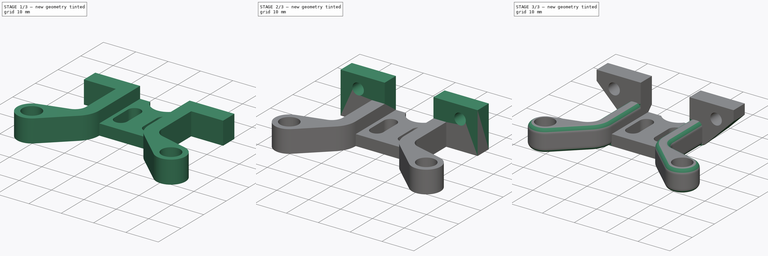
[diagram: build sequence overview — one tinted view per stage of 3, left to right]
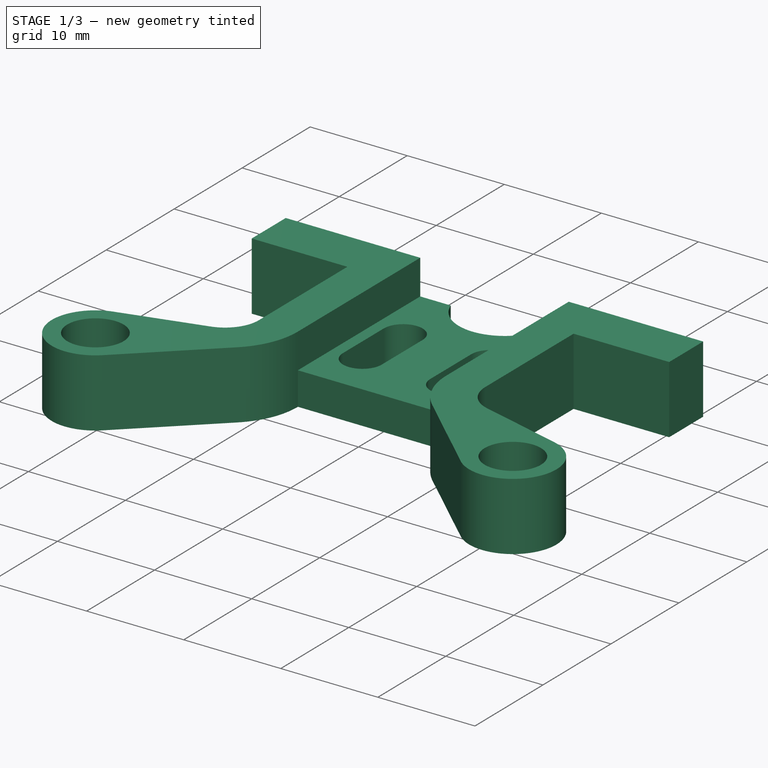
[diagram: stage 1 of 3 — iso view after this stage's code; geometry added in this stage tinted green]
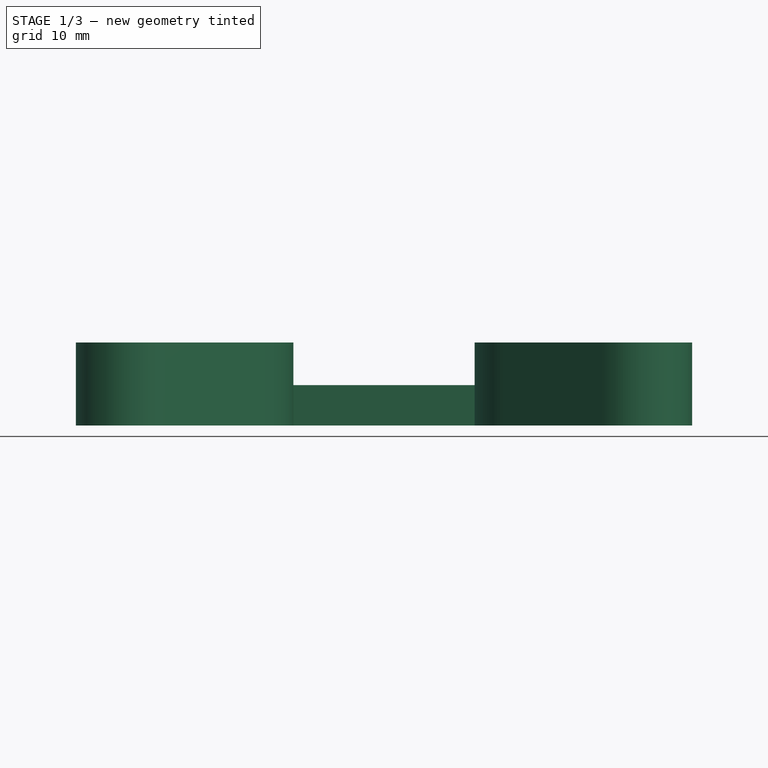
[diagram: stage 1 of 3 — front view after this stage's code; geometry added in this stage tinted green]
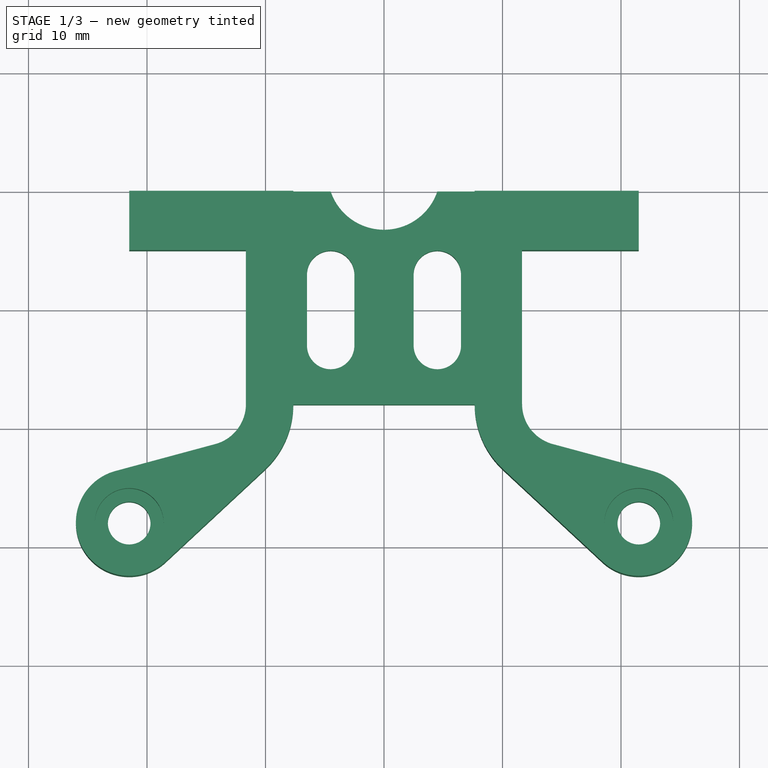
[diagram: stage 1 of 3 — top view after this stage's code; geometry added in this stage tinted green]
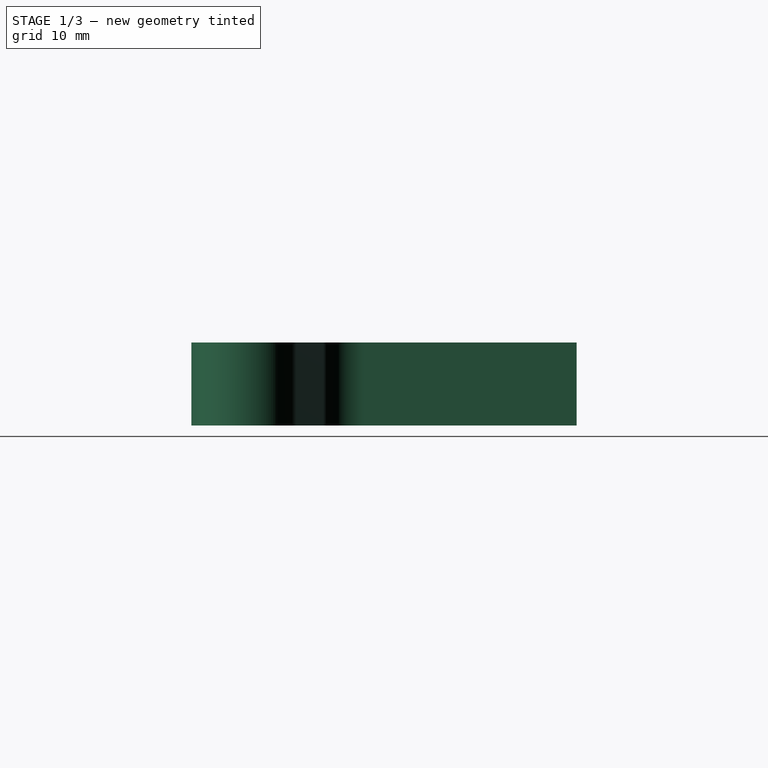
[diagram: stage 1 of 3 — right view after this stage's code; geometry added in this stage tinted green]
FCSTD DOCUMENT  (FreeCAD 1.0R39319 (Git))
Label: Dragon_GX-H15A
License: All rights reserved
LicenseURL: https://en.wikipedia.org/wiki/All_rights_reserved
objects: Sketcher::SketchObject×7, PartDesign::Pocket×5, PartDesign::Pad×2, App::VarSet×1, PartDesign::Fillet×1, PartDesign::Body×1
note: 39 computed .brp shape members not serialized (recipe doc carries the construction recipe); baked Part::Feature solids carry a one-line shape summary decoded from their .brp

FEATURE [App::VarSet] VarSet
  BaseScrewDistance = 42
  BaseScrewFromTop = 28
  ChannelGap = 1.6
  M25HeadDiameter = 4.6
  M25HeadHeight = 2.5
  M25HeatInsert5x4_Diameter = 2.9
  M25HeatInsert5x4_Height = 4.2
  M25NutDiameterMax = 5.8
  M25NutDiameterMin = 5.2
  M25NutHeigth = 2.1
  M25PassThroughDiameter = 2.8
  M25SelfTappingDiameter = 2.4
  M3HeadDiameter = 5.8
  M3HeadHeight = 3
  M3HeatInsert5x4_Diameter = 4.9
  M3HeatInsert5x4_Height = 4.2
  M3PassThroughDiameter = 3.6
  M3SelfTappingDiameter = 2.9
  PindaCenterOffset = 7
  PindaDiameter = 8.4
  PindaSupportLength = 32
  StructureHeight = 7
  SupportArc = 11
  TopHeight = 13
  TopScrewDistance = 32
  TopScrewFromBase = 9
  TopWidth = 43
FEATURE [Sketcher::SketchObject] Sketch
  ArcFitTolerance = 1e-06
  AttachmentSupport = -> [XY_Plane]
  FullyConstrained = true
  MakeInternals = false
  MapMode = 5
  expr: Constraints[13] = VarSet.BaseScrewFromTop
  expr: Constraints[21] = VarSet.M3PassThroughDiameter
  expr: Constraints[7] = VarSet.TopWidth
  sketch-geometry (41):
    g0: LineSegment StartX=-21.5 StartY=0 StartZ=0 EndX=-21.5 EndY=-5 EndZ=0
    g1: LineSegment StartX=21.5 StartY=-5 StartZ=0 EndX=21.5 EndY=0 EndZ=0
    g2: LineSegment [constr] StartX=21.5 StartY=0 StartZ=0 EndX=-21.5 EndY=0 EndZ=0
    g3: LineSegment [constr] StartX=-7.65 StartY=-5 StartZ=0 EndX=-7.65 EndY=-18 EndZ=0
    g4: LineSegment [constr] StartX=7.65 StartY=-5 StartZ=0 EndX=7.65 EndY=-18 EndZ=0
    g5: Circle CenterX=21.5 CenterY=-28 CenterZ=0 NormalX=0 NormalY=0 NormalZ=1 AngleXU=0 Radius=1.8
    g6: LineSegment [constr] StartX=21.5 StartY=0 StartZ=0 EndX=21.5 EndY=-28 EndZ=0
    g7: LineSegment [constr] StartX=-21.5 StartY=-5 StartZ=0 EndX=-21.5 EndY=-28 EndZ=0
    g8: LineSegment [constr] StartX=21.5 StartY=-28 StartZ=0 EndX=-21.5 EndY=-28 EndZ=0
    g9: Circle CenterX=-21.5 CenterY=-28 CenterZ=0 NormalX=0 NormalY=0 NormalZ=1 AngleXU=0 Radius=1.8
    g10: ArcOfCircle CenterX=15.15 CenterY=-18 CenterZ=0 NormalX=0 NormalY=0 NormalZ=1 AngleXU=0 Radius=7.5 StartAngle=3.14159 EndAngle=3.96339
    g11: LineSegment StartX=10.0432 StartY=-23.4928 StartZ=0 EndX=18.4359 EndY=-31.2957 EndZ=0
    g12: ArcOfCircle CenterX=21.5 CenterY=-28 CenterZ=0 NormalX=0 NormalY=0 NormalZ=1 AngleXU=0 Radius=4.5 StartAngle=3.96339 EndAngle=7.59038
    g13: ArcOfCircle CenterX=-21.5 CenterY=-28 CenterZ=0 NormalX=0 NormalY=0 NormalZ=1 AngleXU=0 Radius=4.5 StartAngle=1.8344 EndAngle=5.46138
    g14: ArcOfCircle CenterX=-15.15 CenterY=-18 CenterZ=0 NormalX=0 NormalY=0 NormalZ=1 AngleXU=0 Radius=7.5 StartAngle=5.46138 EndAngle=6.28319
    g15: LineSegment StartX=-10.0432 StartY=-23.4928 StartZ=0 EndX=-18.4359 EndY=-31.2957 EndZ=0
    g16: LineSegment [constr] StartX=-7.65 StartY=-5 StartZ=0 EndX=-11.65 EndY=-5 EndZ=0
    g17: LineSegment [constr] StartX=7.65 StartY=-5 StartZ=0 EndX=11.65 EndY=-5 EndZ=0
    g18: LineSegment StartX=-21.5 StartY=-5 StartZ=0 EndX=-11.65 EndY=-5 EndZ=0
    g19: LineSegment StartX=11.65 StartY=-5 StartZ=0 EndX=21.5 EndY=-5 EndZ=0
    g20: LineSegment StartX=-11.65 StartY=-5 StartZ=0 EndX=-11.65 EndY=-18 EndZ=0
    g21: LineSegment StartX=11.65 StartY=-5 StartZ=0 EndX=11.65 EndY=-18 EndZ=0
    g22: ArcOfCircle CenterX=-15.15 CenterY=-18 CenterZ=0 NormalX=0 NormalY=0 NormalZ=1 AngleXU=0 Radius=3.5 StartAngle=4.97599 EndAngle=6.28319
    g23: ArcOfCircle CenterX=15.15 CenterY=-18 CenterZ=0 NormalX=0 NormalY=0 NormalZ=1 AngleXU=0 Radius=3.5 StartAngle=3.14159 EndAngle=4.44878
    g24: LineSegment StartX=22.6725 StartY=-23.6554 StartZ=0 EndX=14.238 EndY=-21.3791 EndZ=0
    g25: LineSegment StartX=-22.6725 StartY=-23.6554 StartZ=0 EndX=-14.238 EndY=-21.3791 EndZ=0
    g26: LineSegment StartX=-7.65 StartY=-18 StartZ=0 EndX=7.65 EndY=-18 EndZ=0
    g27: ArcOfCircle CenterX=-4.5 CenterY=-7 CenterZ=0 NormalX=0 NormalY=0 NormalZ=1 AngleXU=0 Radius=2 StartAngle=0 EndAngle=3.14159
    g28: ArcOfCircle CenterX=4.5 CenterY=-7 CenterZ=0 NormalX=0 NormalY=0 NormalZ=1 AngleXU=0 Radius=2 StartAngle=0 EndAngle=3.14159
    g29: LineSegment StartX=-6.5 StartY=-7 StartZ=0 EndX=-6.5 EndY=-13 EndZ=0
    g30: LineSegment StartX=-2.5 StartY=-7 StartZ=0 EndX=-2.5 EndY=-13 EndZ=0
    g31: LineSegment StartX=2.5 StartY=-7 StartZ=0 EndX=2.5 EndY=-13 EndZ=0
    g32: LineSegment StartX=6.5 StartY=-7 StartZ=0 EndX=6.5 EndY=-13 EndZ=0
    g33: LineSegment [constr] StartX=4.5 StartY=0 StartZ=0 EndX=4.5 EndY=-5 EndZ=0
    g34: LineSegment [constr] StartX=-4.5 StartY=-7 StartZ=0 EndX=4.5 EndY=-7 EndZ=0
    g35: ArcOfCircle CenterX=-4.5 CenterY=-13 CenterZ=0 NormalX=0 NormalY=0 NormalZ=1 AngleXU=0 Radius=2 StartAngle=3.14159 EndAngle=6.28319
    g36: ArcOfCircle CenterX=4.5 CenterY=-13 CenterZ=0 NormalX=0 NormalY=0 NormalZ=1 AngleXU=0 Radius=2 StartAngle=3.14159 EndAngle=6.28319
    g37: LineSegment [constr] StartX=4.5 StartY=-18 StartZ=0 EndX=4.5 EndY=-15 EndZ=0
    g38: LineSegment StartX=-21.5 StartY=0 StartZ=0 EndX=-4.5 EndY=-2e-16 EndZ=0
    g39: LineSegment StartX=21.5 StartY=0 StartZ=0 EndX=4.5 EndY=0 EndZ=0
    g40: ArcOfCircle CenterX=1e-16 CenterY=1.52069 CenterZ=0 NormalX=0 NormalY=0 NormalZ=1 AngleXU=0 Radius=4.75 StartAngle=3.46748 EndAngle=5.9573
  constraints (106):
    c: Coincident(g1,g2)
    c: Coincident(g2,g0)
    c: Vertical(g0)
    c: Vertical(g1)
    c: PointOnObject(g0,g-1)
    c: Distance(g0) = 5
    c: Symmetric(g0,g1,g-1)
    c: Distance(g2) = 43
    c: Vertical(g3)
    c: Vertical(g4)
    c: Coincident(g6,g1)
    c: Coincident(g5,g6)
    c: Vertical(g6)
    c: Distance(g6) = 28
    c: Coincident(g7,g0)
    c: Vertical(g7)
    c: Coincident(g8,g5)
    c: Horizontal(g8)
    c: Coincident(g8,g7)
    c: Coincident(g9,g7)
    c: Equal(g5,g9)
    c: Diameter(g5) = 3.6
    c: Equal(g3,g4)
    c: Distance(g3) = 13
    c: Tangent(g10,g4) = -1.5708
    c: Diameter(g10) = 15
    c: Tangent(g11,g10) = -1.5708
    c: Coincident(g12,g5)
    c: Diameter(g12) = 9
    c: Tangent(g11,g12) = -1.5708
    c: Coincident(g13,g7)
    c: Equal(g12,g13)
    c: Tangent(g14,g3) = 1.5708
    c: Equal(g14,g10)
    c: Tangent(g15,g14) = 1.5708
    c: Tangent(g15,g13) = 1.5708
    c: Coincident(g16,g3)
    c: Horizontal(g16)
    c: Coincident(g17,g4)
    c: Horizontal(g17)
    c: Distance(g17) = 4
    c: Equal(g17,g16)
    c: Coincident(g18,g0)
    c: Coincident(g18,g16)
    c: Horizontal(g18)
    c: Coincident(g19,g17)
    c: Coincident(g19,g1)
    c: Horizontal(g19)
    c: Equal(g19,g18)
    c: Coincident(g20,g16)
    c: Vertical(g20)
    c: Coincident(g21,g17)
    c: Vertical(g21)
    c: Coincident(g22,g14)
    c: Coincident(g23,g10)
    c: Tangent(g23,g21) = -1.5708
    c: Tangent(g22,g20) = 1.5708
    c: Tangent(g25,g13) = 1.5708
    c: Tangent(g24,g12) = -1.5708
    c: Tangent(g24,g23) = 1.5708
    c: Tangent(g25,g22) = -1.5708
    c: Coincident(g26,g3)
    c: Coincident(g26,g4)
    c: Distance(g26) = 15.3
    c: Horizontal(g26)
    c: Equal(g27,g28)
    c: Vertical(g29)
    c: Vertical(g30)
    c: Vertical(g31)
    c: Vertical(g32)
    c: Equal(g29,g31)
    c: Tangent(g29,g27) = -1.5708
    c: Equal(g30,g31)
    c: Equal(g31,g32)
    c: Tangent(g31,g28) = -1.5708
    c: Tangent(g30,g27) = 1.5708
    c: Tangent(g32,g28) = 1.5708
    c: Diameter(g28) = 4
    c: PointOnObject(g33,g2)
    c: Vertical(g33)
    c: Equal(g33,g0)
    c: PointOnObject(g33,g28)
    c: Perpendicular(g28,g33)
    c: Coincident(g34,g27)
    c: Coincident(g34,g28)
    c: Distance(g34) = 9
    c: Symmetric(g27,g28,g-2)
    c: Coincident(g35,g29)
    c: Coincident(g36,g31)
    c: Equal(g28,g36)
    c: Equal(g36,g35)
    c: Coincident(g35,g30)
    c: Coincident(g36,g32)
    c: PointOnObject(g37,g26)
    c: Vertical(g37)
    c: PointOnObject(g37,g36)
    c: Perpendicular(g36,g37)
    c: Distance(g37) = 3
    c: Coincident(g38,g0)
    c: PointOnObject(g38,g2)
    c: Coincident(g39,g1)
    c: Coincident(g39,g33)
    c: Equal(g39,g38)
    c: Coincident(g40,g38)
    c: Diameter(g40) = 9.5
    c: Coincident(g33,g40)
FEATURE [PartDesign::Pad] Pad  label="Main Structure"
  Direction = (0,0,1)
  Length = 7
  Length2 = 10
  Profile = -> Sketch
  ReferenceAxis = -> Sketch [N_Axis]
  Refine = true
  Suppressed = false
  Type = 0
  expr: Length = VarSet.StructureHeight
FEATURE [Sketcher::SketchObject] Sketch001
  ArcFitTolerance = 1e-06
  AttachmentSupport = -> [Pad]
  ExternalGeometry = -> [Pad]
  FullyConstrained = true
  MakeInternals = false
  MapMode = 5
  Placement = pos=(0,0,7) rot=(0,0,1;0rad)
  sketch-geometry (4):
    g0: LineSegment StartX=-7.65 StartY=-18 StartZ=0 EndX=7.65 EndY=-18 EndZ=0
    g1: LineSegment StartX=7.65 StartY=-18 StartZ=0 EndX=7.65 EndY=0 EndZ=0
    g2: LineSegment StartX=7.65 StartY=0 StartZ=0 EndX=-7.65 EndY=0 EndZ=0
    g3: LineSegment StartX=-7.65 StartY=0 StartZ=0 EndX=-7.65 EndY=-18 EndZ=0
  constraints (10):
    c: Coincident(g0,g1)
    c: Coincident(g1,g2)
    c: Coincident(g2,g3)
    c: Coincident(g3,g0)
    c: Horizontal(g2)
    c: Vertical(g1)
    c: Vertical(g3)
    c: Coincident(g0,g-3)
    c: PointOnObject(g1,g-1)
    c: Coincident(g0,g-3)
FEATURE [PartDesign::Pocket] Pocket  label="Sensor Bay"
  BaseFeature = -> Pad
  Direction = (0,0,-1)
  Length = 3.6
  Length2 = 5
  Profile = -> Sketch001
  ReferenceAxis = -> Sketch001 [N_Axis]
  Refine = true
  Suppressed = false
  Type = 0
FEATURE [Sketcher::SketchObject] Sketch002
  ArcFitTolerance = 1e-06
  AttachmentSupport = -> [Pocket]
  ExternalGeometry = -> [Pocket]
  FullyConstrained = true
  MakeInternals = false
  MapMode = 5
  Placement = pos=(0,0,7) rot=(0,0,1;0rad)
  expr: Constraints[3] = VarSet.M3HeadDiameter
  sketch-geometry (2):
    g0: Circle CenterX=-21.5 CenterY=-28 CenterZ=0 NormalX=0 NormalY=0 NormalZ=1 AngleXU=0 Radius=2.9
    g1: Circle CenterX=21.5 CenterY=-28 CenterZ=0 NormalX=0 NormalY=0 NormalZ=1 AngleXU=0 Radius=2.9
  constraints (4):
    c: Coincident(g0,g-3)
    c: Coincident(g1,g-4)
    c: Equal(g0,g1)
    c: Diameter(g1) = 5.8
FEATURE [PartDesign::Pocket] Pocket001  label="Lower Screws Head"
  BaseFeature = -> Pocket
  Direction = (0,0,-1)
  Length = 3
  Length2 = 5
  Profile = -> Sketch002
  ReferenceAxis = -> Sketch002 [N_Axis]
  Refine = true
  Suppressed = false
  Type = 0
  expr: Length = VarSet.M3HeadHeight
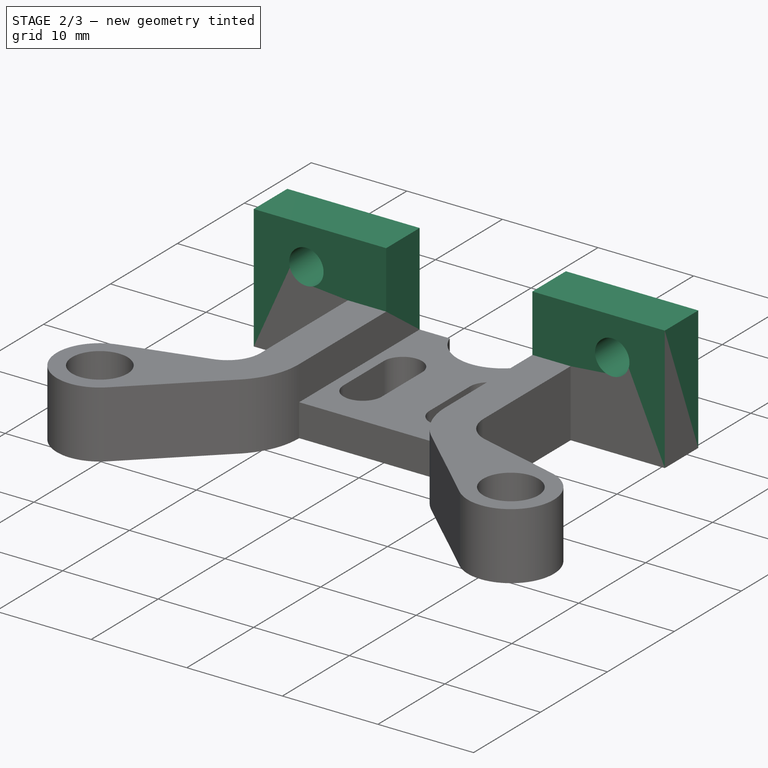
[diagram: stage 2 of 3 — iso view after this stage's code; geometry added in this stage tinted green]
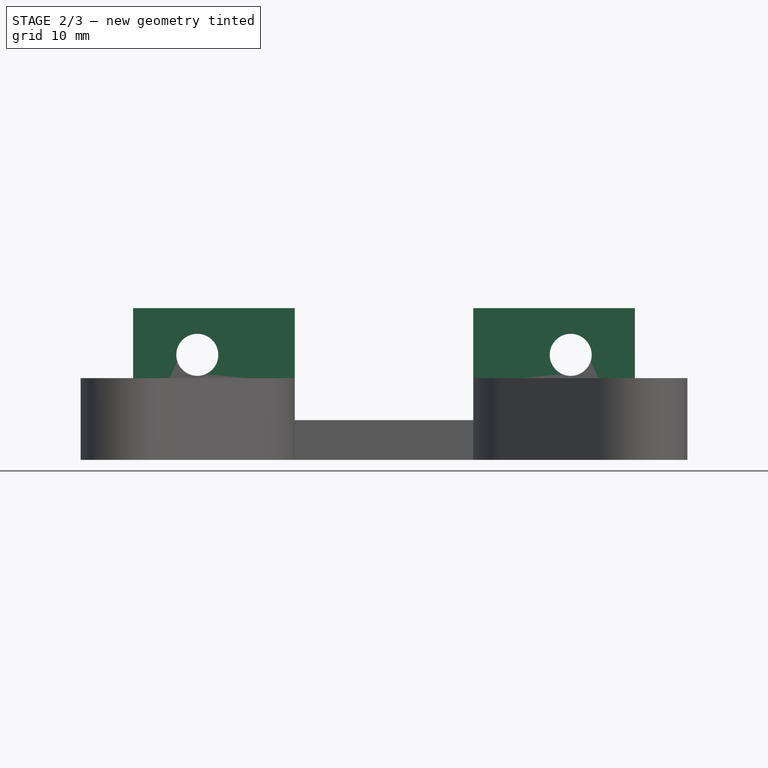
[diagram: stage 2 of 3 — front view after this stage's code; geometry added in this stage tinted green]
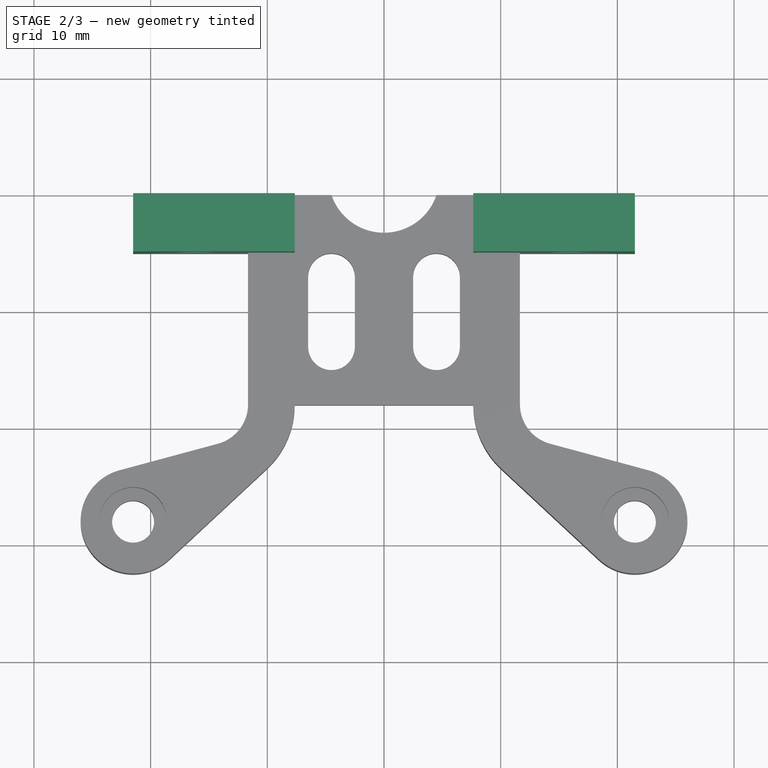
[diagram: stage 2 of 3 — top view after this stage's code; geometry added in this stage tinted green]
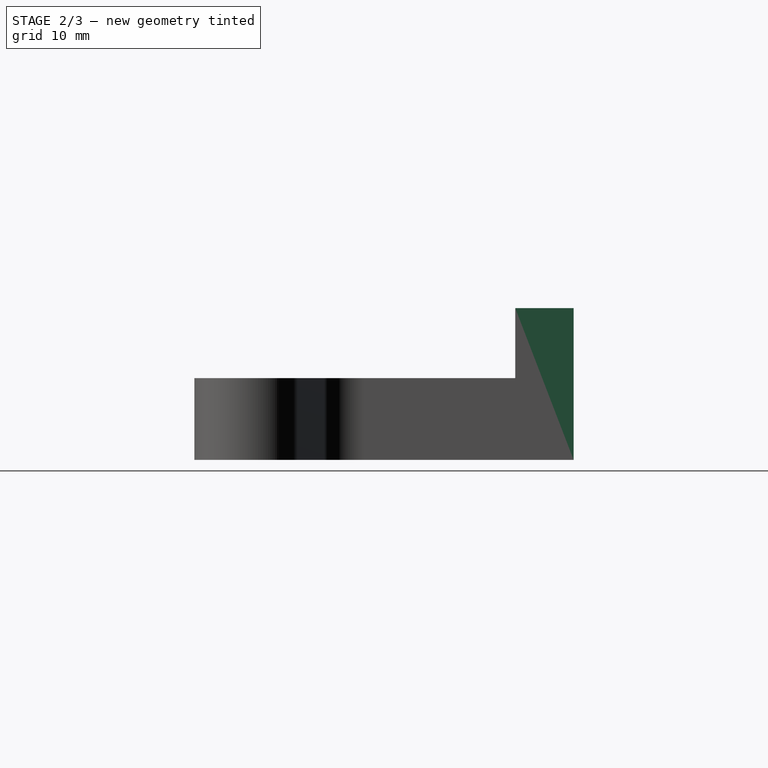
[diagram: stage 2 of 3 — right view after this stage's code; geometry added in this stage tinted green]
FEATURE [Sketcher::SketchObject] Sketch003
  ArcFitTolerance = 1e-06
  AttachmentSupport = -> [Pocket001]
  ExternalGeometry = -> [Pocket001]
  FullyConstrained = true
  MakeInternals = false
  MapMode = 5
  Placement = pos=(0,0,7) rot=(0,0,1;0rad)
  sketch-geometry (8):
    g0: LineSegment StartX=-21.5 StartY=-5 StartZ=0 EndX=-7.65 EndY=-5 EndZ=0
    g1: LineSegment StartX=-7.65 StartY=-5 StartZ=0 EndX=-7.65 EndY=0 EndZ=0
    g2: LineSegment StartX=-7.65 StartY=0 StartZ=0 EndX=-21.5 EndY=0 EndZ=0
    g3: LineSegment StartX=-21.5 StartY=0 StartZ=0 EndX=-21.5 EndY=-5 EndZ=0
    g4: LineSegment StartX=21.5 StartY=-5 StartZ=0 EndX=21.5 EndY=0 EndZ=0
    g5: LineSegment StartX=21.5 StartY=0 StartZ=0 EndX=7.65 EndY=0 EndZ=0
    g6: LineSegment StartX=7.65 StartY=0 StartZ=0 EndX=7.65 EndY=-5 EndZ=0
    g7: LineSegment StartX=7.65 StartY=-5 StartZ=0 EndX=21.5 EndY=-5 EndZ=0
  constraints (20):
    c: Coincident(g0,g1)
    c: Coincident(g1,g2)
    c: Coincident(g2,g3)
    c: Coincident(g3,g0)
    c: Horizontal(g0)
    c: Horizontal(g2)
    c: Vertical(g1)
    c: Vertical(g3)
    c: Coincident(g0,g-3)
    c: Coincident(g1,g-6)
    c: Coincident(g4,g5)
    c: Coincident(g5,g6)
    c: Coincident(g6,g7)
    c: Coincident(g7,g4)
    c: Vertical(g4)
    c: Vertical(g6)
    c: Horizontal(g5)
    c: Horizontal(g7)
    c: Coincident(g4,g-4)
    c: Coincident(g5,g-5)
FEATURE [PartDesign::Pad] Pad001  label="Top Structure"
  BaseFeature = -> Pocket001
  Direction = (0,0,1)
  Length = 6
  Length2 = 10
  Profile = -> Sketch003
  ReferenceAxis = -> Sketch003 [N_Axis]
  Refine = true
  Suppressed = false
  Type = 0
FEATURE [Sketcher::SketchObject] Sketch004
  ArcFitTolerance = 1e-06
  AttachmentSupport = -> [Pad001]
  FullyConstrained = true
  MakeInternals = false
  MapMode = 5
  Placement = pos=(0,0,0) rot=(0,0.707107,0.707107;3.14159rad)
  expr: Constraints[3] = VarSet.TopScrewDistance
  expr: Constraints[7] = VarSet.TopScrewFromBase
  expr: Constraints[9] = VarSet.M3PassThroughDiameter
  sketch-geometry (4):
    g0: Circle CenterX=16 CenterY=9 CenterZ=0 NormalX=0 NormalY=0 NormalZ=1 AngleXU=0 Radius=1.8
    g1: Circle CenterX=-16 CenterY=9 CenterZ=0 NormalX=0 NormalY=0 NormalZ=1 AngleXU=0 Radius=1.8
    g2: LineSegment [constr] StartX=-16 StartY=9 StartZ=0 EndX=16 EndY=9 EndZ=0
    g3: LineSegment [constr] StartX=16 StartY=9 StartZ=0 EndX=16 EndY=0 EndZ=0
  constraints (10):
    c: Coincident(g2,g1)
    c: Coincident(g2,g0)
    c: Symmetric(g0,g1,g-2)
    c: Distance(g2) = 32
    c: Coincident(g3,g0)
    c: Vertical(g3)
    c: PointOnObject(g3,g-1)
    c: Distance(g3) = 9
    c: Equal(g0,g1)
    c: Diameter(g0) = 3.6
FEATURE [PartDesign::Pocket] Pocket002  label="Top Screws Holes"
  BaseFeature = -> Pad001
  Direction = (0,-1,2e-16)
  Length = 10
  Length2 = 5
  Profile = -> Sketch004
  ReferenceAxis = -> Sketch004 [N_Axis]
  Refine = true
  Suppressed = false
  Type = 0
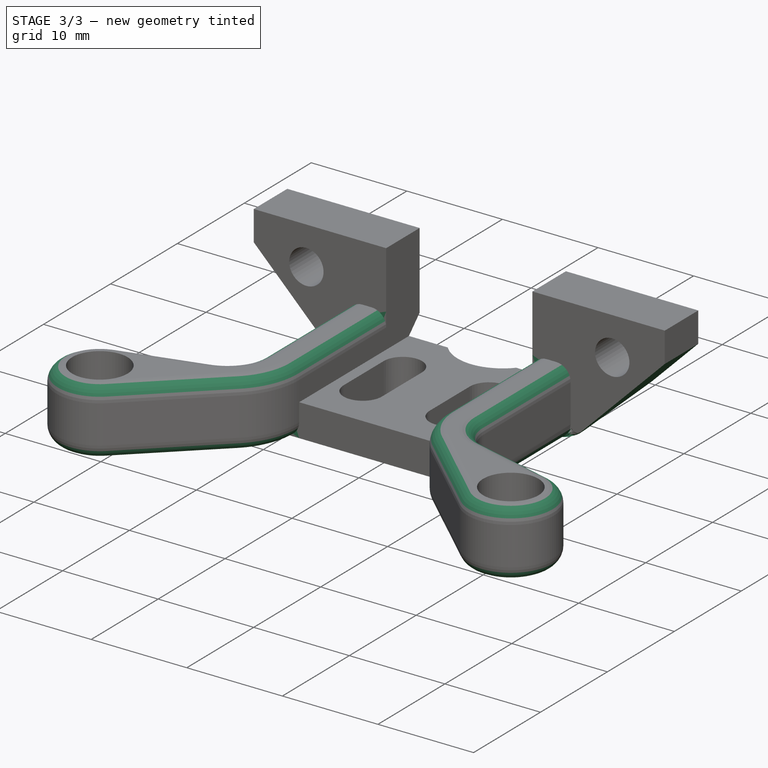
[diagram: stage 3 of 3 — iso view after this stage's code; geometry added in this stage tinted green]
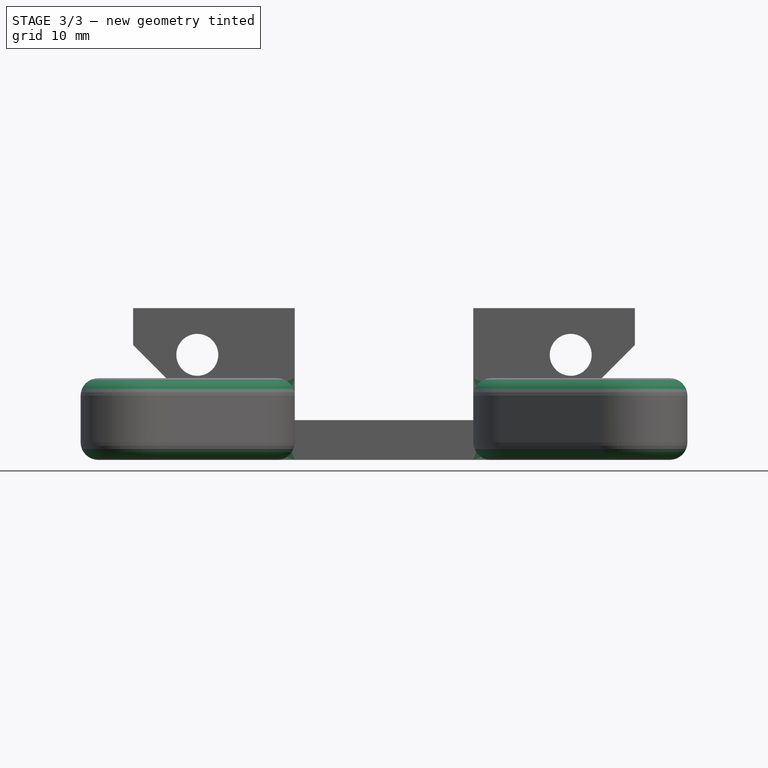
[diagram: stage 3 of 3 — front view after this stage's code; geometry added in this stage tinted green]
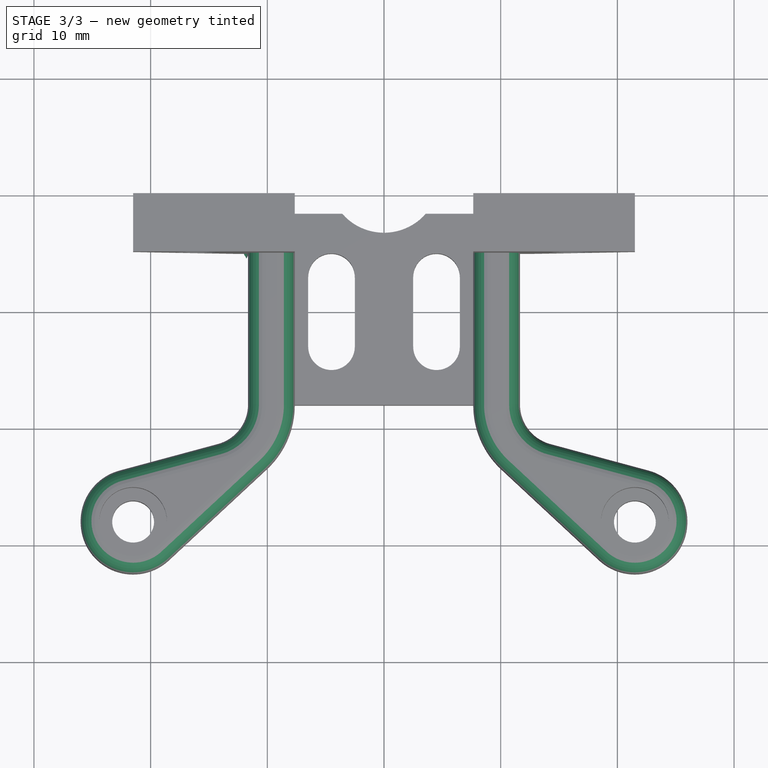
[diagram: stage 3 of 3 — top view after this stage's code; geometry added in this stage tinted green]
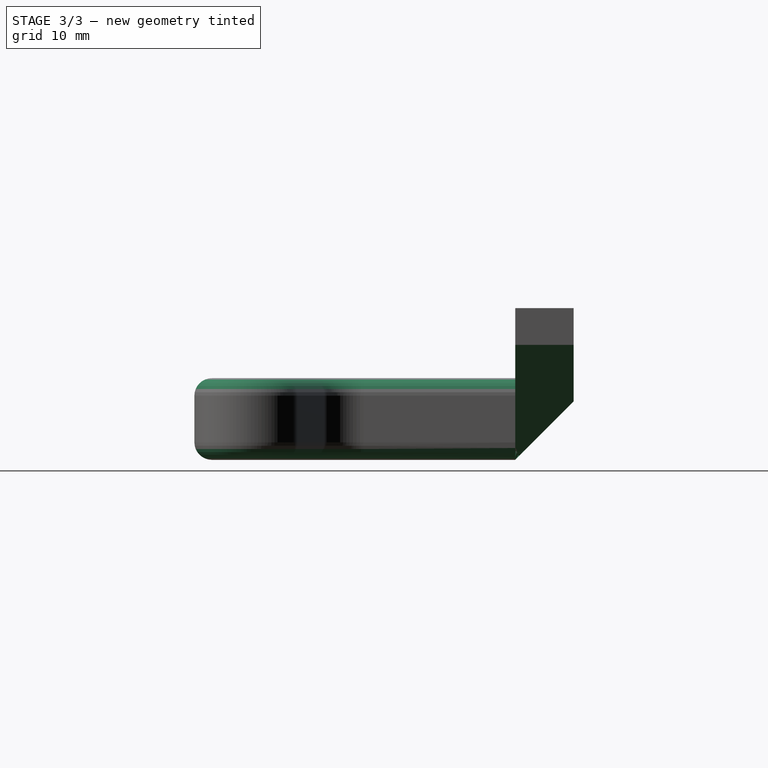
[diagram: stage 3 of 3 — right view after this stage's code; geometry added in this stage tinted green]
FEATURE [Sketcher::SketchObject] Sketch005
  ArcFitTolerance = 1e-06
  AttachmentSupport = -> [Pocket002]
  ExternalGeometry = -> [Pocket002]
  FullyConstrained = true
  MakeInternals = false
  MapMode = 5
  Placement = pos=(0,-5,0) rot=(1,0,0;1.5708rad)
  sketch-geometry (6):
    g0: LineSegment StartX=-21.5 StartY=0 StartZ=0 EndX=-21.5 EndY=9.85 EndZ=0
    g1: LineSegment StartX=21.5 StartY=0 StartZ=0 EndX=21.5 EndY=9.85 EndZ=0
    g2: LineSegment StartX=21.5 StartY=0 StartZ=0 EndX=11.65 EndY=0 EndZ=0
    g3: LineSegment StartX=-21.5 StartY=0 StartZ=0 EndX=-11.65 EndY=0 EndZ=0
    g4: LineSegment StartX=-21.5 StartY=9.85 StartZ=0 EndX=-11.65 EndY=0 EndZ=0
    g5: LineSegment StartX=11.65 StartY=0 StartZ=0 EndX=21.5 EndY=9.85 EndZ=0
  constraints (14):
    c: Coincident(g0,g-4)
    c: Vertical(g0)
    c: Coincident(g1,g-3)
    c: Vertical(g1)
    c: Coincident(g2,g1)
    c: Coincident(g2,g-3)
    c: Coincident(g3,g0)
    c: Coincident(g3,g-4)
    c: Equal(g3,g0)
    c: Equal(g2,g1)
    c: Coincident(g4,g0)
    c: Coincident(g4,g3)
    c: Coincident(g5,g2)
    c: Coincident(g5,g1)
FEATURE [PartDesign::Pocket] Pocket003  label="Top Inclination Shape"
  BaseFeature = -> Pocket002
  Direction = (0,1,-2e-16)
  Length = 10
  Length2 = 5
  Profile = -> Sketch005
  ReferenceAxis = -> Sketch005 [N_Axis]
  Refine = true
  Suppressed = false
  Type = 0
FEATURE [Sketcher::SketchObject] Sketch006
  ArcFitTolerance = 1e-06
  AttachmentSupport = -> [Pocket003]
  FullyConstrained = true
  MakeInternals = false
  MapMode = 5
  Placement = pos=(-21.5,0,0) rot=(0.57735,-0.57735,-0.57735;2.0944rad)
  sketch-geometry (3):
    g0: LineSegment StartX=0 StartY=0 StartZ=0 EndX=5 EndY=0 EndZ=0
    g1: LineSegment StartX=0 StartY=0 StartZ=0 EndX=0 EndY=5 EndZ=0
    g2: LineSegment StartX=0 StartY=5 StartZ=0 EndX=5 EndY=0 EndZ=0
  constraints (8):
    c: Coincident(g0,g-1)
    c: PointOnObject(g0,g-1)
    c: Coincident(g1,g0)
    c: PointOnObject(g1,g-2)
    c: Coincident(g2,g1)
    c: Coincident(g2,g0)
    c: Equal(g0,g1)
    c: Distance(g1) = 5
FEATURE [PartDesign::Pocket] Pocket004  label="Top Inclination Shape 2"
  BaseFeature = -> Pocket003
  Direction = (1,0,0)
  Length = 5
  Length2 = 5
  Profile = -> Sketch006
  ReferenceAxis = -> Sketch006 [N_Axis]
  Refine = true
  Suppressed = false
  Type = 1
FEATURE [PartDesign::Fillet] Fillet  label="Rondings"
  Base = -> Pocket004 [Edge12,Edge58,Edge48,Edge8]
  BaseFeature = -> Pocket004
  Radius = 1.5
  Refine = true
  SupportTransform = false
  Suppressed = false
  UseAllEdges = false
FEATURE [PartDesign::Body] Body
  AllowCompound = false
  Group = -> [Sketch,Pad,Sketch001,Pocket,Sketch002,Pocket001,Sketch003,Pad001,Sketch004,Pocket002,Sketch005,Pocket003,Sketch006,Pocket004,Fillet]
  Origin = -> Origin
  Tip = -> Fillet
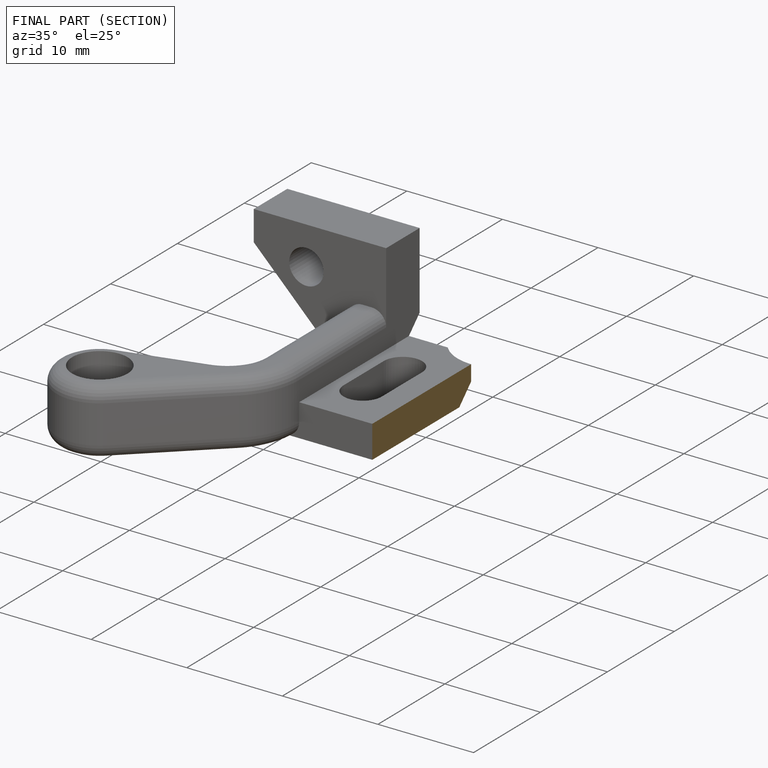
[diagram: finished part — half-section view (interior)]
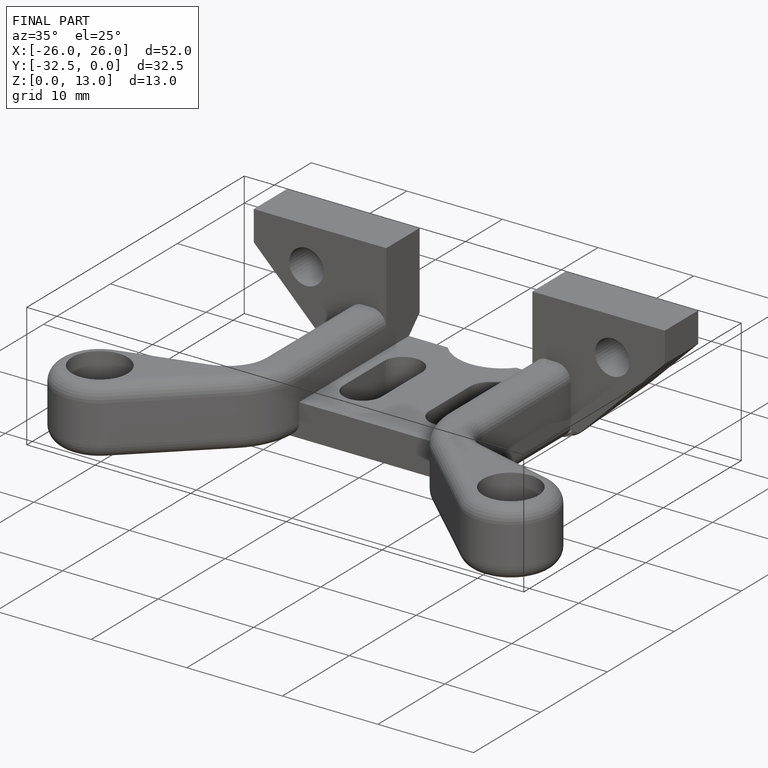
[diagram: finished part — iso view with bounding-box wireframe]
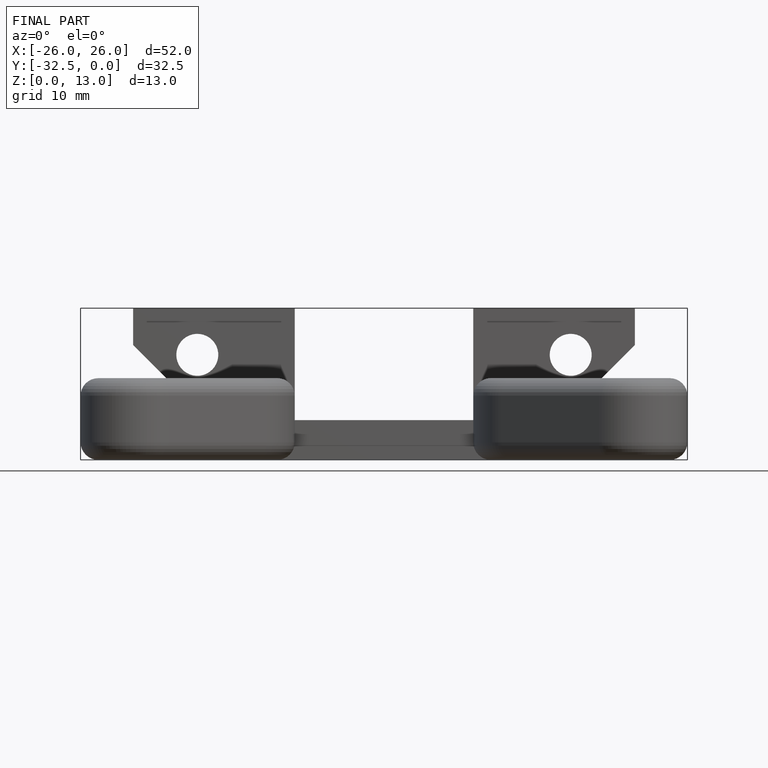
[diagram: finished part — front view with bounding-box wireframe]
